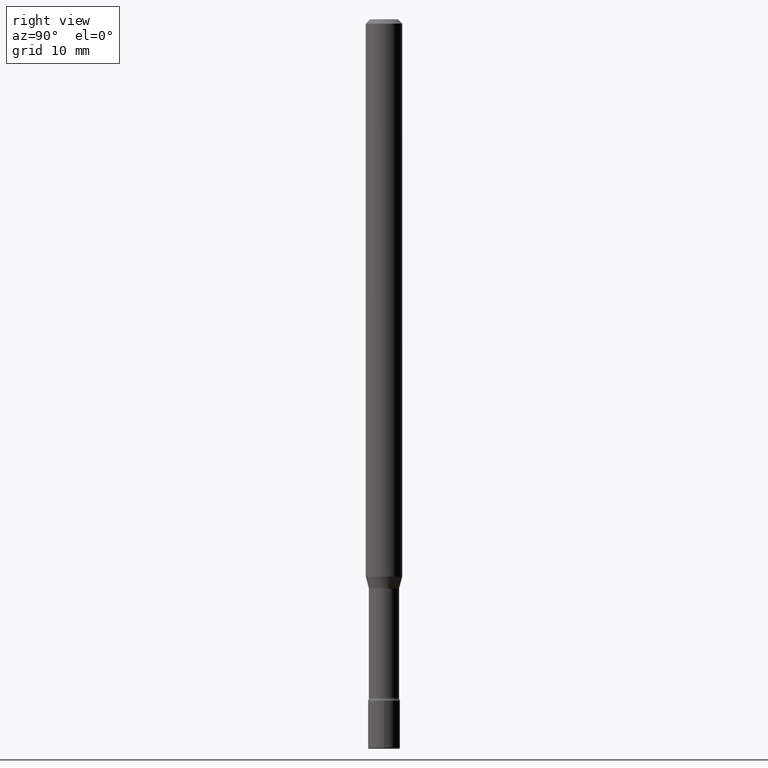
[diagram: clean part render]
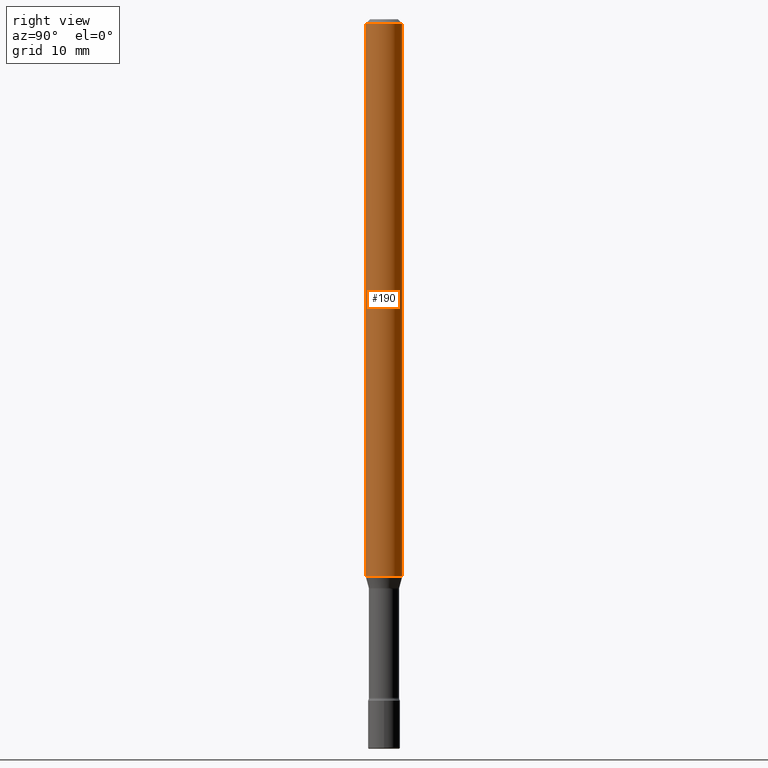
[diagram: same view with one face highlighted and labeled with its STEP entity id]
A machine part, right view. The second image highlights one B-rep face of the part: STEP entity #190.
In plain terms, the highlighted cylindrical surface (edge-blend (fillet) strip) has radius 1.5875 mm, axis along (-0, 0, 1).
Its self-contained STEP definition (entity closure, byte-faithful):
#15 = DIRECTION ( 'NONE',  ( -2.445385286950522456E-29, 3.491600943140732554E-15, 1.000000000000000000 ) ) ;
#21 = CARTESIAN_POINT ( 'NONE',  ( 3.668077930425790463E-31, -5.237401414711108766E-17, -0.01500000000000002720 ) ) ;
#26 = LINE ( 'NONE', #71, #28 ) ;
#28 = VECTOR ( 'NONE', #236, 39.37007874015748143 ) ;
#36 = ORIENTED_EDGE ( 'NONE', *, *, #429, .F. ) ;
#44 = DIRECTION ( 'NONE',  ( -2.445385286950522456E-29, 3.491600943140732554E-15, 1.000000000000000000 ) ) ;
#65 = DIRECTION ( 'NONE',  ( -2.445385286950522456E-29, 3.491600943140732554E-15, 1.000000000000000000 ) ) ;
#71 = CARTESIAN_POINT ( 'NONE',  ( 4.440892098500625669E-16, 0.06250000000000000000, 2.598483399449503033E-16 ) ) ;
#97 = FACE_OUTER_BOUND ( 'NONE', #311, .T. ) ;
#107 = CARTESIAN_POINT ( 'NONE',  ( 4.440892098501093562E-16, 0.06249999999999334560, -1.909693851278256416 ) ) ;
#164 = VERTEX_POINT ( 'NONE', #276 ) ;
#190 = ADVANCED_FACE ( 'NONE', ( #97 ), #457, .T. ) ;
#192 = DIRECTION ( 'NONE',  ( -6.982962677686265922E-15, -1.000000000000000000, 3.483106191921935554E-15 ) ) ;
#199 = VERTEX_POINT ( 'NONE', #107 ) ;
#206 = AXIS2_PLACEMENT_3D ( 'NONE', #401, #44, #214 ) ;
#214 = DIRECTION ( 'NONE',  ( -6.982962677686265922E-15, -1.000000000000000000, 4.370956789862821150E-15 ) ) ;
#236 = DIRECTION ( 'NONE',  ( -2.445385286950522456E-29, 3.491600943140732554E-15, 1.000000000000000000 ) ) ;
#245 = CARTESIAN_POINT ( 'NONE',  ( 4.440892098501096520E-16, 0.06249999999999995837, -0.01500000000000024578 ) ) ;
#261 = ORIENTED_EDGE ( 'NONE', *, *, #410, .T. ) ;
#262 = VERTEX_POINT ( 'NONE', #461 ) ;
#276 = CARTESIAN_POINT ( 'NONE',  ( -4.364351673553447815E-16, -0.06250000000000664746, -1.909693851278255972 ) ) ;
#289 = AXIS2_PLACEMENT_3D ( 'NONE', #507, #15, #416 ) ;
#311 = EDGE_LOOP ( 'NONE', ( #388, #261, #36, #368 ) ) ;
#349 = AXIS2_PLACEMENT_3D ( 'NONE', #21, #519, #192 ) ;
#368 = ORIENTED_EDGE ( 'NONE', *, *, #380, .F. ) ;
#380 = EDGE_CURVE ( 'NONE', #164, #262, #470, .T. ) ;
#388 = ORIENTED_EDGE ( 'NONE', *, *, #521, .T. ) ;
#401 = CARTESIAN_POINT ( 'NONE',  ( 4.669937246495726866E-29, -6.667888852233216880E-15, -1.909693851278256194 ) ) ;
#410 = EDGE_CURVE ( 'NONE', #199, #537, #26, .T. ) ;
#415 = CIRCLE ( 'NONE', #206, 0.06250000000000000000 ) ;
#416 = DIRECTION ( 'NONE',  ( -6.982962677686265922E-15, -1.000000000000000000, 3.491600943140732160E-15 ) ) ;
#429 = EDGE_CURVE ( 'NONE', #262, #537, #505, .T. ) ;
#457 = CYLINDRICAL_SURFACE ( 'NONE', #289, 0.06250000000000000000 ) ;
#459 = VECTOR ( 'NONE', #65, 39.37007874015748143 ) ;
#461 = CARTESIAN_POINT ( 'NONE',  ( -4.364351673553912750E-16, -0.06250000000000005551, -0.01499999999999981036 ) ) ;
#468 = CARTESIAN_POINT ( 'NONE',  ( -4.364351673553916201E-16, -0.06250000000000000000, 6.962984578375418232E-16 ) ) ;
#470 = LINE ( 'NONE', #468, #459 ) ;
#505 = CIRCLE ( 'NONE', #349, 0.06250000000000000000 ) ;
#507 = CARTESIAN_POINT ( 'NONE',  ( -1.169113584055446105E-44, 1.669184350826100908E-30, 4.780733988912460139E-16 ) ) ;
#519 = DIRECTION ( 'NONE',  ( -2.445385286950522456E-29, 3.491600943140732554E-15, 1.000000000000000000 ) ) ;
#521 = EDGE_CURVE ( 'NONE', #164, #199, #415, .T. ) ;
#537 = VERTEX_POINT ( 'NONE', #245 ) ;